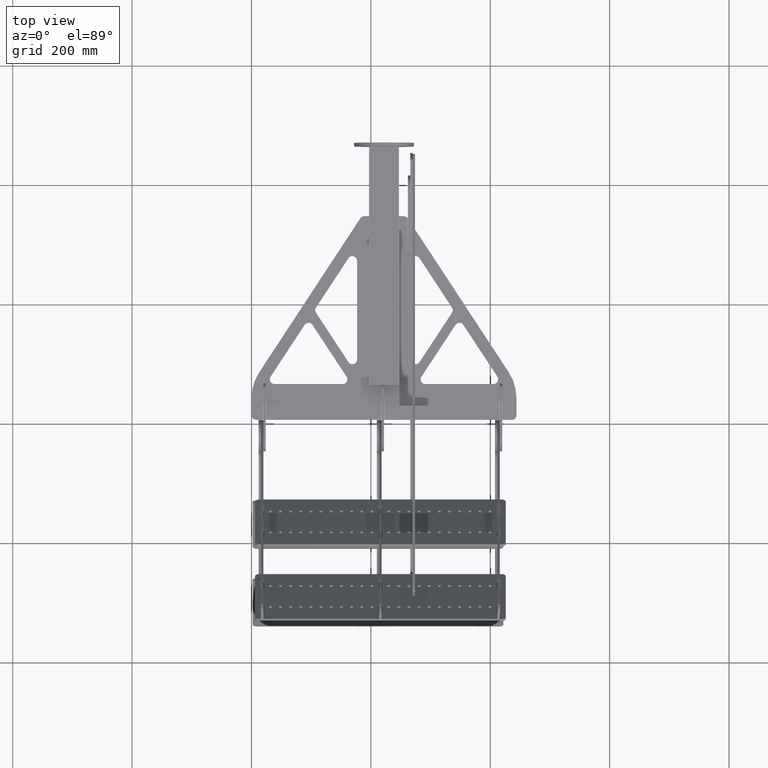
[diagram: clean part render]
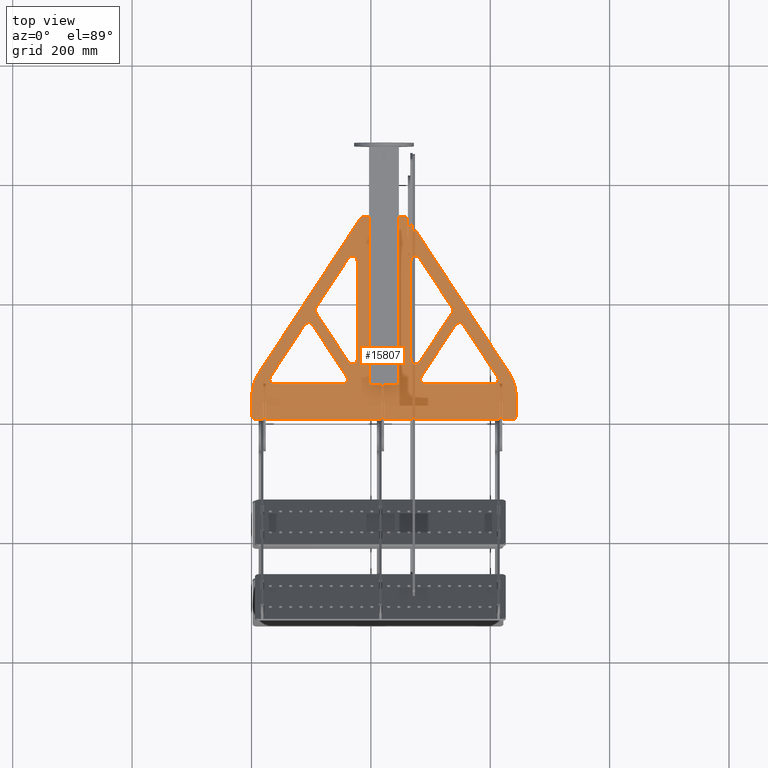
[diagram: same view with one face highlighted and labeled with its STEP entity id]
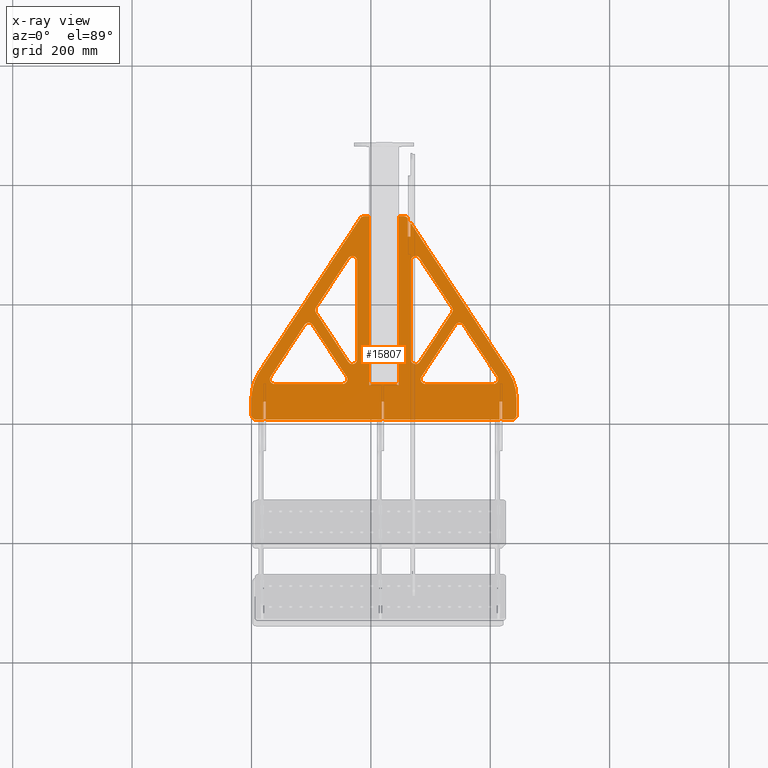
[diagram: x-ray of the same camera — body ghosted, the highlighted face saturated]
A machine part, top view. The second image highlights one B-rep face of the part: STEP entity #15807.
The next image is the same camera in x-ray: the body ghosted, the highlighted face saturated — about 1% of this face is hidden behind the body in this view.
In plain terms, the highlighted planar face has unit normal (0, 0, 1).
Its self-contained STEP definition (entity closure, byte-faithful):
#12 = VERTEX_POINT ( 'NONE', #4402 ) ;
#95 = VERTEX_POINT ( 'NONE', #12875 ) ;
#102 = CARTESIAN_POINT ( 'NONE',  ( 152.3390500830379000, -100.0359762211931500, 4.000000000000000000 ) ) ;
#109 = VECTOR ( 'NONE', #3108, 1000.000000000000000 ) ;
#123 = ORIENTED_EDGE ( 'NONE', *, *, #14482, .T. ) ;
#126 = EDGE_LOOP ( 'NONE', ( #3964, #14374, #3701, #15455, #3602, #15847, #7174, #12003, #4223, #330, #1074, #16534, #13043, #1642, #1350, #7548, #15241, #1438, #12494, #609, #7664, #6154, #11868, #8483, #5845, #13599, #7946, #16176, #8318, #1757, #10492, #1658, #12070, #13246, #7488, #8324, #1364, #123, #8420 ) ) ;
#128 = LINE ( 'NONE', #14519, #7131 ) ;
#152 = CARTESIAN_POINT ( 'NONE',  ( 24.19999999999999200, 4.170229283308482500E-014, 4.000000000000000000 ) ) ;
#157 = VERTEX_POINT ( 'NONE', #7732 ) ;
#158 = VERTEX_POINT ( 'NONE', #5159 ) ;
#187 = DIRECTION ( 'NONE',  ( -1.000000000000000000, 0.0000000000000000000, 0.0000000000000000000 ) ) ;
#190 = CARTESIAN_POINT ( 'NONE',  ( 0.0000000000000000000, 0.0000000000000000000, 4.000000000000000000 ) ) ;
#269 = DIRECTION ( 'NONE',  ( -1.000000000000000000, 0.0000000000000000000, 0.0000000000000000000 ) ) ;
#286 = DIRECTION ( 'NONE',  ( -1.000000000000000000, 0.0000000000000000000, 0.0000000000000000000 ) ) ;
#309 = CARTESIAN_POINT ( 'NONE',  ( 355.0091107729554700, 159.0826021288199000, 4.000000000000000000 ) ) ;
#330 = ORIENTED_EDGE ( 'NONE', *, *, #10608, .F. ) ;
#338 = CARTESIAN_POINT ( 'NONE',  ( 0.0000000000000000000, 57.99999999999999300, 4.000000000000000000 ) ) ;
#473 = LINE ( 'NONE', #190, #3573 ) ;
#491 = ORIENTED_EDGE ( 'NONE', *, *, #5228, .T. ) ;
#538 = EDGE_CURVE ( 'NONE', #8732, #9022, #3840, .T. ) ;
#609 = ORIENTED_EDGE ( 'NONE', *, *, #15421, .F. ) ;
#636 = CIRCLE ( 'NONE', #4499, 8.000000000000007100 ) ;
#679 = VERTEX_POINT ( 'NONE', #1316 ) ;
#761 = EDGE_CURVE ( 'NONE', #8474, #15510, #13004, .T. ) ;
#805 = VECTOR ( 'NONE', #8690, 1000.000000000000000 ) ;
#829 = DIRECTION ( 'NONE',  ( -0.0000000000000000000, -0.0000000000000000000, -1.000000000000000000 ) ) ;
#841 = EDGE_CURVE ( 'NONE', #6924, #7484, #2750, .T. ) ;
#868 = EDGE_CURVE ( 'NONE', #10482, #1345, #13790, .T. ) ;
#878 = CIRCLE ( 'NONE', #9183, 8.000000000000007100 ) ;
#993 = DIRECTION ( 'NONE',  ( -0.0000000000000000000, -0.0000000000000000000, -1.000000000000000000 ) ) ;
#1059 = VERTEX_POINT ( 'NONE', #1341 ) ;
#1074 = ORIENTED_EDGE ( 'NONE', *, *, #3317, .F. ) ;
#1229 = ORIENTED_EDGE ( 'NONE', *, *, #8572, .T. ) ;
#1241 = CIRCLE ( 'NONE', #10416, 7.999999999999952000 ) ;
#1316 = CARTESIAN_POINT ( 'NONE',  ( 247.2000000000000200, 341.2426514745468500, 4.000000000000000000 ) ) ;
#1341 = CARTESIAN_POINT ( 'NONE',  ( 217.7999999999999800, 0.0000000000000000000, 4.000000000000000000 ) ) ;
#1345 = VERTEX_POINT ( 'NONE', #4884 ) ;
#1350 = ORIENTED_EDGE ( 'NONE', *, *, #6716, .F. ) ;
#1364 = ORIENTED_EDGE ( 'NONE', *, *, #3706, .F. ) ;
#1438 = ORIENTED_EDGE ( 'NONE', *, *, #2964, .F. ) ;
#1462 = ORIENTED_EDGE ( 'NONE', *, *, #868, .T. ) ;
#1491 = CARTESIAN_POINT ( 'NONE',  ( 283.3946510641233700, 67.99999999962462000, 4.000000000000000000 ) ) ;
#1608 = DIRECTION ( 'NONE',  ( 0.0000000000000000000, 1.000000000000000000, -0.0000000000000000000 ) ) ;
#1632 = VECTOR ( 'NONE', #7807, 1000.000000000000000 ) ;
#1642 = ORIENTED_EDGE ( 'NONE', *, *, #3240, .F. ) ;
#1651 = LINE ( 'NONE', #15327, #8224 ) ;
#1658 = ORIENTED_EDGE ( 'NONE', *, *, #4448, .F. ) ;
#1698 = VECTOR ( 'NONE', #12490, 1000.000000000000000 ) ;
#1708 = EDGE_CURVE ( 'NONE', #14004, #7793, #12467, .T. ) ;
#1719 = CARTESIAN_POINT ( 'NONE',  ( 108.1322069572191500, 179.4494191489770000, 4.000000000000000000 ) ) ;
#1757 = ORIENTED_EDGE ( 'NONE', *, *, #3690, .T. ) ;
#1808 = EDGE_CURVE ( 'NONE', #158, #3349, #14312, .T. ) ;
#1845 = AXIS2_PLACEMENT_3D ( 'NONE', #1906, #11101, #3249 ) ;
#1863 = ORIENTED_EDGE ( 'NONE', *, *, #538, .F. ) ;
#1872 = DIRECTION ( 'NONE',  ( -0.0000000000000000000, -0.0000000000000000000, -1.000000000000000000 ) ) ;
#1906 = CARTESIAN_POINT ( 'NONE',  ( 38.75063936099929400, 67.99999999999994300, 4.000000000000000000 ) ) ;
#1938 = CARTESIAN_POINT ( 'NONE',  ( 0.0000000000000000000, 341.2426514745469000, 4.000000000000000000 ) ) ;
#1944 = VERTEX_POINT ( 'NONE', #2673 ) ;
#1945 = VERTEX_POINT ( 'NONE', #5693 ) ;
#1991 = VERTEX_POINT ( 'NONE', #16438 ) ;
#2001 = DIRECTION ( 'NONE',  ( -0.0000000000000000000, -0.0000000000000000000, -1.000000000000000000 ) ) ;
#2019 = CARTESIAN_POINT ( 'NONE',  ( 222.2000000000000500, 0.0000000000000000000, 4.000000000000000000 ) ) ;
#2028 = AXIS2_PLACEMENT_3D ( 'NONE', #9865, #2001, #11196 ) ;
#2146 = VERTEX_POINT ( 'NONE', #8897 ) ;
#2154 = EDGE_CURVE ( 'NONE', #4337, #15161, #4872, .T. ) ;
#2201 = CARTESIAN_POINT ( 'NONE',  ( 420.2000000000000500, 0.0000000000000000000, 4.000000000000000000 ) ) ;
#2352 = LINE ( 'NONE', #3888, #9345 ) ;
#2431 = DIRECTION ( 'NONE',  ( -0.0000000000000000000, -0.0000000000000000000, -1.000000000000000000 ) ) ;
#2444 = ORIENTED_EDGE ( 'NONE', *, *, #3695, .T. ) ;
#2464 = VECTOR ( 'NONE', #3224, 1000.000000000000000 ) ;
#2527 = CARTESIAN_POINT ( 'NONE',  ( 255.0000000000000000, 333.2426514745470200, 4.000000000000000000 ) ) ;
#2549 = CARTESIAN_POINT ( 'NONE',  ( 19.79999999999993700, 30.19999999999999600, 4.000000000000000000 ) ) ;
#2560 = EDGE_CURVE ( 'NONE', #16270, #13100, #11011, .T. ) ;
#2583 = EDGE_CURVE ( 'NONE', #15161, #12, #7501, .T. ) ;
#2608 = EDGE_CURVE ( 'NONE', #3921, #12172, #2352, .T. ) ;
#2639 = FACE_BOUND ( 'NONE', #17008, .T. ) ;
#2673 = CARTESIAN_POINT ( 'NONE',  ( 88.99088922712424200, 159.0826021286887900, 4.000000000000000000 ) ) ;
#2722 = CARTESIAN_POINT ( 'NONE',  ( 159.2924538582330700, 72.39119889855761900, 4.000000000000000000 ) ) ;
#2747 = EDGE_CURVE ( 'NONE', #4508, #14042, #10993, .T. ) ;
#2748 = CARTESIAN_POINT ( 'NONE',  ( 415.8000000000000700, 0.0000000000000000000, 4.000000000000000000 ) ) ;
#2750 = LINE ( 'NONE', #8154, #16243 ) ;
#2764 = DIRECTION ( 'NONE',  ( 0.5488998623196910100, 0.8358881152076659300, -0.0000000000000000000 ) ) ;
#2781 = VERTEX_POINT ( 'NONE', #9978 ) ;
#2847 = ORIENTED_EDGE ( 'NONE', *, *, #12460, .T. ) ;
#2919 = DIRECTION ( 'NONE',  ( 0.5488998623202679900, -0.8358881152072870100, -0.0000000000000000000 ) ) ;
#2964 = EDGE_CURVE ( 'NONE', #157, #12172, #13834, .T. ) ;
#3000 = LINE ( 'NONE', #9529, #6039 ) ;
#3031 = ORIENTED_EDGE ( 'NONE', *, *, #13560, .T. ) ;
#3047 = EDGE_CURVE ( 'NONE', #10996, #2781, #16483, .T. ) ;
#3053 = CARTESIAN_POINT ( 'NONE',  ( 13.12895078338714700, 79.99332606607185900, 4.000000000000000000 ) ) ;
#3059 = VECTOR ( 'NONE', #2919, 1000.000000000000100 ) ;
#3075 = ORIENTED_EDGE ( 'NONE', *, *, #17023, .T. ) ;
#3092 = CARTESIAN_POINT ( 'NONE',  ( 177.0000000000000000, 266.3492801609145300, 4.000000000000000000 ) ) ;
#3100 = CARTESIAN_POINT ( 'NONE',  ( 267.0000000000000000, 0.0000000000000000000, 4.000000000000000000 ) ) ;
#3108 = DIRECTION ( 'NONE',  ( 0.0000000000000000000, 1.000000000000000000, -0.0000000000000000000 ) ) ;
#3112 = DIRECTION ( 'NONE',  ( 1.000000000000000000, 0.0000000000000000000, -0.0000000000000000000 ) ) ;
#3157 = DIRECTION ( 'NONE',  ( 0.0000000000000000000, 1.000000000000000000, -0.0000000000000000000 ) ) ;
#3221 = CARTESIAN_POINT ( 'NONE',  ( -10.81136997697623800, 7.099466284881065000, 4.000000000000000000 ) ) ;
#3224 = DIRECTION ( 'NONE',  ( 1.000000000000000000, 0.0000000000000000000, -0.0000000000000000000 ) ) ;
#3232 = LINE ( 'NONE', #15073, #13307 ) ;
#3240 = EDGE_CURVE ( 'NONE', #10358, #5099, #13011, .T. ) ;
#3249 = DIRECTION ( 'NONE',  ( -1.000000000000000000, 0.0000000000000000000, 0.0000000000000000000 ) ) ;
#3275 = AXIS2_PLACEMENT_3D ( 'NONE', #4111, #13286, #5417 ) ;
#3300 = CARTESIAN_POINT ( 'NONE',  ( 157.8877197855294700, 103.6796026591645000, 4.000000000000000000 ) ) ;
#3317 = EDGE_CURVE ( 'NONE', #4685, #679, #11347, .T. ) ;
#3332 = DIRECTION ( 'NONE',  ( -0.0000000000000000000, -0.0000000000000000000, -1.000000000000000000 ) ) ;
#3342 = CARTESIAN_POINT ( 'NONE',  ( 70.44999999999926400, -70.44999999999977500, 4.000000000000000000 ) ) ;
#3343 = DIRECTION ( 'NONE',  ( -0.5488998623198605400, 0.8358881152075545700, 0.0000000000000000000 ) ) ;
#3349 = VERTEX_POINT ( 'NONE', #309 ) ;
#3426 = LINE ( 'NONE', #7821, #6508 ) ;
#3488 = CARTESIAN_POINT ( 'NONE',  ( 196.8000000000000100, 341.2426514745470700, 4.000000000000000000 ) ) ;
#3491 = CARTESIAN_POINT ( 'NONE',  ( 436.0000000005181800, 2.428612866367529900E-014, 4.000000000000000000 ) ) ;
#3538 = EDGE_CURVE ( 'NONE', #12410, #1945, #7879, .T. ) ;
#3573 = VECTOR ( 'NONE', #10725, 1000.000000000000000 ) ;
#3583 = VECTOR ( 'NONE', #5183, 1000.000000000000000 ) ;
#3602 = ORIENTED_EDGE ( 'NONE', *, *, #13671, .F. ) ;
#3666 = CARTESIAN_POINT ( 'NONE',  ( 8.000000000000000000, 8.000000000000000000, 4.000000000000000000 ) ) ;
#3681 = CARTESIAN_POINT ( 'NONE',  ( 8.000000000000028400, 0.0000000000000000000, 4.000000000000000000 ) ) ;
#3690 = EDGE_CURVE ( 'NONE', #6286, #1059, #13406, .T. ) ;
#3695 = EDGE_CURVE ( 'NONE', #95, #15588, #6408, .T. ) ;
#3701 = ORIENTED_EDGE ( 'NONE', *, *, #15751, .F. ) ;
#3706 = EDGE_CURVE ( 'NONE', #15477, #12039, #9492, .T. ) ;
#3772 = DIRECTION ( 'NONE',  ( -0.0000000000000000000, -0.0000000000000000000, -1.000000000000000000 ) ) ;
#3802 = VERTEX_POINT ( 'NONE', #13631 ) ;
#3840 = LINE ( 'NONE', #6360, #7324 ) ;
#3856 = DIRECTION ( 'NONE',  ( -1.000000000000000000, 0.0000000000000000000, 0.0000000000000000000 ) ) ;
#3888 = CARTESIAN_POINT ( 'NONE',  ( 199.0000000000000000, 0.0000000000000000000, 4.000000000000000000 ) ) ;
#3900 = VERTEX_POINT ( 'NONE', #16239 ) ;
#3921 = VERTEX_POINT ( 'NONE', #12573 ) ;
#3964 = ORIENTED_EDGE ( 'NONE', *, *, #841, .T. ) ;
#3990 = AXIS2_PLACEMENT_3D ( 'NONE', #2527, #11703, #3856 ) ;
#4062 = ORIENTED_EDGE ( 'NONE', *, *, #1808, .T. ) ;
#4068 = CIRCLE ( 'NONE', #8871, 7.999999999999996400 ) ;
#4111 = CARTESIAN_POINT ( 'NONE',  ( 95.67799414878555800, 154.6914032301312700, 4.000000000000000000 ) ) ;
#4196 = CARTESIAN_POINT ( 'NONE',  ( -27.52913228112945600, 18.07746353127501500, 4.000000000000000000 ) ) ;
#4223 = ORIENTED_EDGE ( 'NONE', *, *, #5694, .F. ) ;
#4229 = CARTESIAN_POINT ( 'NONE',  ( 0.0000000000000000000, 30.19999999999999900, 4.000000000000000000 ) ) ;
#4243 = CARTESIAN_POINT ( 'NONE',  ( 19.79999999999999400, 0.0000000000000000000, 4.000000000000000000 ) ) ;
#4303 = DIRECTION ( 'NONE',  ( 0.0000000000000000000, 1.000000000000000000, -0.0000000000000000000 ) ) ;
#4337 = VERTEX_POINT ( 'NONE', #14470 ) ;
#4402 = CARTESIAN_POINT ( 'NONE',  ( 284.7075461424287800, 72.39119889813142100, 4.000000000000000000 ) ) ;
#4442 = CARTESIAN_POINT ( 'NONE',  ( 275.0000000000000000, 266.3492801609986600, 4.000000000000000000 ) ) ;
#4448 = EDGE_CURVE ( 'NONE', #10494, #13464, #11029, .T. ) ;
#4470 = CARTESIAN_POINT ( 'NONE',  ( 268.0358881152010900, 327.9656526164592400, 4.000000000000000000 ) ) ;
#4499 = AXIS2_PLACEMENT_3D ( 'NONE', #9726, #1872, #11064 ) ;
#4508 = VERTEX_POINT ( 'NONE', #16110 ) ;
#4523 = DIRECTION ( 'NONE',  ( -0.5488998623196980100, -0.8358881152076613800, -0.0000000000000000000 ) ) ;
#4562 = ORIENTED_EDGE ( 'NONE', *, *, #761, .F. ) ;
#4629 = CIRCLE ( 'NONE', #15301, 7.999999999999979600 ) ;
#4682 = EDGE_CURVE ( 'NONE', #6855, #12205, #5885, .T. ) ;
#4685 = VERTEX_POINT ( 'NONE', #5906 ) ;
#4712 = AXIS2_PLACEMENT_3D ( 'NONE', #15886, #8058, #187 ) ;
#4715 = CARTESIAN_POINT ( 'NONE',  ( 261.8000000001443400, 1.119574123488052700E-010, 4.000000000000000000 ) ) ;
#4754 = CARTESIAN_POINT ( 'NONE',  ( 182.3128950783386400, 337.6338503731045100, 4.000000000000000000 ) ) ;
#4763 = LINE ( 'NONE', #9371, #8267 ) ;
#4773 = CARTESIAN_POINT ( 'NONE',  ( 0.0000000000000000000, 30.20000000000000300, 4.000000000000000000 ) ) ;
#4788 = CARTESIAN_POINT ( 'NONE',  ( 0.0000000000000000000, 0.0000000000000000000, 4.000000000000000000 ) ) ;
#4867 = CARTESIAN_POINT ( 'NONE',  ( 247.2000000000000200, 0.0000000000000000000, 4.000000000000000000 ) ) ;
#4872 = CIRCLE ( 'NONE', #6119, 8.000000000000007100 ) ;
#4884 = CARTESIAN_POINT ( 'NONE',  ( 267.0000000000000000, 266.3492801609986600, 4.000000000000000000 ) ) ;
#4930 = DIRECTION ( 'NONE',  ( -0.0000000000000000000, -0.0000000000000000000, -1.000000000000000000 ) ) ;
#4982 = DIRECTION ( 'NONE',  ( -1.000000000000000000, 0.0000000000000000000, 0.0000000000000000000 ) ) ;
#5004 = CARTESIAN_POINT ( 'NONE',  ( 281.6871049216582600, 270.7404790595608700, 4.000000000000000000 ) ) ;
#5020 = CARTESIAN_POINT ( 'NONE',  ( 0.0000000000000000000, 57.99999999999999300, 4.000000000000000000 ) ) ;
#5026 = DIRECTION ( 'NONE',  ( 1.000000000000000000, 0.0000000000000000000, -0.0000000000000000000 ) ) ;
#5054 = AXIS2_PLACEMENT_3D ( 'NONE', #10304, #2431, #11609 ) ;
#5084 = DIRECTION ( 'NONE',  ( -0.0000000000000000000, -0.0000000000000000000, -1.000000000000000000 ) ) ;
#5089 = VERTEX_POINT ( 'NONE', #4243 ) ;
#5099 = VERTEX_POINT ( 'NONE', #10839 ) ;
#5159 = CARTESIAN_POINT ( 'NONE',  ( 341.6349009296021700, 159.0826021287640200, 4.000000000000000000 ) ) ;
#5165 = CARTESIAN_POINT ( 'NONE',  ( 177.0000000000000300, 101.3319559341547900, 4.000000000000000000 ) ) ;
#5173 = CARTESIAN_POINT ( 'NONE',  ( 165.7132599292180500, -108.8183740183859100, 4.000000000000000000 ) ) ;
#5175 = AXIS2_PLACEMENT_3D ( 'NONE', #11623, #3772, #12938 ) ;
#5183 = DIRECTION ( 'NONE',  ( 1.000000000000000000, 0.0000000000000000000, -0.0000000000000000000 ) ) ;
#5228 = EDGE_CURVE ( 'NONE', #2146, #7290, #13828, .T. ) ;
#5302 = CARTESIAN_POINT ( 'NONE',  ( 196.8000000000000100, 0.0000000000000000000, 4.000000000000000000 ) ) ;
#5352 = EDGE_LOOP ( 'NONE', ( #4562, #8252, #1462, #7103, #3075, #3031 ) ) ;
#5417 = DIRECTION ( 'NONE',  ( -1.000000000000000000, 0.0000000000000000000, 0.0000000000000000000 ) ) ;
#5448 = DIRECTION ( 'NONE',  ( -0.5488998623196980100, -0.8358881152076613800, -0.0000000000000000000 ) ) ;
#5512 = CARTESIAN_POINT ( 'NONE',  ( 420.2000000000000500, 0.0000000000000000000, 4.000000000000000000 ) ) ;
#5520 = VECTOR ( 'NONE', #12685, 1000.000000000000000 ) ;
#5600 = DIRECTION ( 'NONE',  ( -0.0000000000000000000, -0.0000000000000000000, -1.000000000000000000 ) ) ;
#5622 = CARTESIAN_POINT ( 'NONE',  ( 222.1999999999999900, 30.19999999999999600, 4.000000000000000000 ) ) ;
#5693 = CARTESIAN_POINT ( 'NONE',  ( 102.3650990704468900, 159.0826021286888500, 4.000000000000000000 ) ) ;
#5694 = EDGE_CURVE ( 'NONE', #9053, #14042, #14016, .T. ) ;
#5711 = EDGE_CURVE ( 'NONE', #6415, #8688, #7078, .T. ) ;
#5724 = VERTEX_POINT ( 'NONE', #15576 ) ;
#5741 = DIRECTION ( 'NONE',  ( -1.000000000000000000, 0.0000000000000000000, 0.0000000000000000000 ) ) ;
#5845 = ORIENTED_EDGE ( 'NONE', *, *, #8675, .F. ) ;
#5869 = EDGE_CURVE ( 'NONE', #14891, #7484, #6875, .T. ) ;
#5885 = CIRCLE ( 'NONE', #2028, 7.999999999999979600 ) ;
#5890 = CARTESIAN_POINT ( 'NONE',  ( 281.6871049216614400, 96.94075703559735800, 4.000000000000000000 ) ) ;
#5906 = CARTESIAN_POINT ( 'NONE',  ( 247.2000000000000200, 57.99999999999999300, 4.000000000000000000 ) ) ;
#5956 = CARTESIAN_POINT ( 'NONE',  ( 106.8193118788804300, 183.8406180475346000, 4.000000000000000000 ) ) ;
#5959 = CARTESIAN_POINT ( 'NONE',  ( 0.0000000000000000000, 36.08133708049572900, 4.000000000000000000 ) ) ;
#5979 = VECTOR ( 'NONE', #1608, 1000.000000000000000 ) ;
#6039 = VECTOR ( 'NONE', #6910, 1000.000000000000000 ) ;
#6040 = CIRCLE ( 'NONE', #6201, 1.000000000000000900 ) ;
#6068 = AXIS2_PLACEMENT_3D ( 'NONE', #15974, #8156, #269 ) ;
#6085 = DIRECTION ( 'NONE',  ( 1.000000000000000000, 0.0000000000000000000, 0.0000000000000000000 ) ) ;
#6092 = FACE_BOUND ( 'NONE', #16591, .T. ) ;
#6119 = AXIS2_PLACEMENT_3D ( 'NONE', #12915, #5084, #14219 ) ;
#6146 = CARTESIAN_POINT ( 'NONE',  ( 0.0000000000000000000, 30.19999999999999900, 4.000000000000000000 ) ) ;
#6154 = ORIENTED_EDGE ( 'NONE', *, *, #10955, .T. ) ;
#6186 = VERTEX_POINT ( 'NONE', #3488 ) ;
#6189 = CARTESIAN_POINT ( 'NONE',  ( 189.0000000000000000, 341.2426514745470200, 4.000000000000000000 ) ) ;
#6201 = AXIS2_PLACEMENT_3D ( 'NONE', #12751, #4930, #14074 ) ;
#6234 = CARTESIAN_POINT ( 'NONE',  ( 444.0000000005181300, 8.000000000000000000, 4.000000000000000000 ) ) ;
#6238 = VECTOR ( 'NONE', #6322, 1000.000000000000000 ) ;
#6244 = VECTOR ( 'NONE', #10389, 1000.000000000000000 ) ;
#6249 = DIRECTION ( 'NONE',  ( -0.0000000000000000000, -0.0000000000000000000, -1.000000000000000000 ) ) ;
#6275 = CIRCLE ( 'NONE', #4712, 8.000000000000007100 ) ;
#6286 = VERTEX_POINT ( 'NONE', #10258 ) ;
#6322 = DIRECTION ( 'NONE',  ( 1.000000000000000000, 0.0000000000000000000, -0.0000000000000000000 ) ) ;
#6360 = CARTESIAN_POINT ( 'NONE',  ( 177.0000000000000300, 0.0000000000000000000, 4.000000000000000000 ) ) ;
#6396 = EDGE_CURVE ( 'NONE', #12039, #3900, #9272, .T. ) ;
#6398 = CARTESIAN_POINT ( 'NONE',  ( 291.3946510641233700, 67.99999999962462000, 4.000000000000000000 ) ) ;
#6408 = CIRCLE ( 'NONE', #6068, 8.000000000000007100 ) ;
#6415 = VERTEX_POINT ( 'NONE', #10044 ) ;
#6494 = CARTESIAN_POINT ( 'NONE',  ( 200.9000000000000300, 60.00000000000000000, 4.000000000000000000 ) ) ;
#6508 = VECTOR ( 'NONE', #15638, 1000.000000000000100 ) ;
#6716 = EDGE_CURVE ( 'NONE', #15010, #10358, #16223, .T. ) ;
#6757 = DIRECTION ( 'NONE',  ( -0.0000000000000000000, -0.0000000000000000000, -1.000000000000000000 ) ) ;
#6784 = CARTESIAN_POINT ( 'NONE',  ( 364.0000000005181800, 36.08133708008970300, 4.000000000000000000 ) ) ;
#6802 = AXIS2_PLACEMENT_3D ( 'NONE', #13466, #5600, #14761 ) ;
#6810 = EDGE_CURVE ( 'NONE', #8161, #5724, #12965, .T. ) ;
#6851 = VECTOR ( 'NONE', #12257, 1000.000000000000000 ) ;
#6855 = VERTEX_POINT ( 'NONE', #4754 ) ;
#6875 = CIRCLE ( 'NONE', #15372, 79.99999999999995700 ) ;
#6910 = DIRECTION ( 'NONE',  ( -9.190587952195007500E-016, 1.000000000000000000, -0.0000000000000000000 ) ) ;
#6924 = VERTEX_POINT ( 'NONE', #6234 ) ;
#6940 = AXIS2_PLACEMENT_3D ( 'NONE', #6398, #15547, #7735 ) ;
#6948 = LINE ( 'NONE', #12236, #16972 ) ;
#7036 = VECTOR ( 'NONE', #13874, 1000.000000000000000 ) ;
#7078 = LINE ( 'NONE', #10409, #3583 ) ;
#7103 = ORIENTED_EDGE ( 'NONE', *, *, #8023, .T. ) ;
#7130 = CARTESIAN_POINT ( 'NONE',  ( 245.0000000000000000, 0.0000000000000000000, 4.000000000000000000 ) ) ;
#7131 = VECTOR ( 'NONE', #15758, 1000.000000000000000 ) ;
#7174 = ORIENTED_EDGE ( 'NONE', *, *, #14730, .T. ) ;
#7192 = AXIS2_PLACEMENT_3D ( 'NONE', #4788, #13938, #6085 ) ;
#7199 = LINE ( 'NONE', #7130, #7597 ) ;
#7248 = ORIENTED_EDGE ( 'NONE', *, *, #9947, .T. ) ;
#7251 = DIRECTION ( 'NONE',  ( 0.5488998623202521200, -0.8358881152072974400, -0.0000000000000000000 ) ) ;
#7281 = VECTOR ( 'NONE', #13768, 1000.000000000000000 ) ;
#7290 = VERTEX_POINT ( 'NONE', #1719 ) ;
#7295 = CARTESIAN_POINT ( 'NONE',  ( 266.1999999999938500, 327.4167527541389400, 4.000000000000000000 ) ) ;
#7303 = ORIENTED_EDGE ( 'NONE', *, *, #8435, .F. ) ;
#7313 = CARTESIAN_POINT ( 'NONE',  ( 144.5135099422068900, 94.89720486204923600, 4.000000000000000000 ) ) ;
#7324 = VECTOR ( 'NONE', #14199, 1000.000000000000000 ) ;
#7369 = VERTEX_POINT ( 'NONE', #4470 ) ;
#7376 = ORIENTED_EDGE ( 'NONE', *, *, #8720, .F. ) ;
#7382 = CARTESIAN_POINT ( 'NONE',  ( 0.0000000000000000000, 341.2426514745470700, 4.000000000000000000 ) ) ;
#7481 = VECTOR ( 'NONE', #3343, 1000.000000000000000 ) ;
#7484 = VERTEX_POINT ( 'NONE', #12828 ) ;
#7488 = ORIENTED_EDGE ( 'NONE', *, *, #8798, .T. ) ;
#7501 = CIRCLE ( 'NONE', #6940, 8.000000000000007100 ) ;
#7548 = ORIENTED_EDGE ( 'NONE', *, *, #14711, .F. ) ;
#7559 = CARTESIAN_POINT ( 'NONE',  ( 335.8677930428488600, 179.4494191490822200, 4.000000000000000000 ) ) ;
#7597 = VECTOR ( 'NONE', #3157, 1000.000000000000000 ) ;
#7664 = ORIENTED_EDGE ( 'NONE', *, *, #4682, .F. ) ;
#7732 = CARTESIAN_POINT ( 'NONE',  ( 196.8000000000000100, 57.99999999999999300, 4.000000000000000000 ) ) ;
#7735 = DIRECTION ( 'NONE',  ( -1.000000000000000000, 0.0000000000000000000, 0.0000000000000000000 ) ) ;
#7793 = VERTEX_POINT ( 'NONE', #2549 ) ;
#7807 = DIRECTION ( 'NONE',  ( 0.5488998623133516400, 0.8358881152118288200, -0.0000000000000000000 ) ) ;
#7821 = CARTESIAN_POINT ( 'NONE',  ( -10.81136997697623800, 7.099466284881065000, 4.000000000000000000 ) ) ;
#7879 = LINE ( 'NONE', #7313, #14815 ) ;
#7925 = EDGE_CURVE ( 'NONE', #12122, #10494, #4763, .T. ) ;
#7941 = DIRECTION ( 'NONE',  ( 0.0000000000000000000, 1.000000000000000000, -0.0000000000000000000 ) ) ;
#7946 = ORIENTED_EDGE ( 'NONE', *, *, #11599, .T. ) ;
#8023 = EDGE_CURVE ( 'NONE', #1345, #14946, #16839, .T. ) ;
#8058 = DIRECTION ( 'NONE',  ( -0.0000000000000000000, -0.0000000000000000000, -1.000000000000000000 ) ) ;
#8104 = DIRECTION ( 'NONE',  ( -1.000000000000000000, 0.0000000000000000000, 0.0000000000000000000 ) ) ;
#8117 = VECTOR ( 'NONE', #11915, 1000.000000000000000 ) ;
#8154 = CARTESIAN_POINT ( 'NONE',  ( 444.0000000005181300, 0.0000000000000000000, 4.000000000000000000 ) ) ;
#8156 = DIRECTION ( 'NONE',  ( -0.0000000000000000000, -0.0000000000000000000, -1.000000000000000000 ) ) ;
#8161 = VERTEX_POINT ( 'NONE', #5956 ) ;
#8169 = DIRECTION ( 'NONE',  ( -0.0000000000000000000, -0.0000000000000000000, -1.000000000000000000 ) ) ;
#8224 = VECTOR ( 'NONE', #16640, 999.9999999999998900 ) ;
#8236 = EDGE_CURVE ( 'NONE', #6924, #8681, #1241, .T. ) ;
#8252 = ORIENTED_EDGE ( 'NONE', *, *, #8901, .T. ) ;
#8267 = VECTOR ( 'NONE', #14581, 1000.000000000000000 ) ;
#8318 = ORIENTED_EDGE ( 'NONE', *, *, #8829, .F. ) ;
#8324 = ORIENTED_EDGE ( 'NONE', *, *, #6396, .F. ) ;
#8406 = VECTOR ( 'NONE', #5026, 1000.000000000000000 ) ;
#8419 = EDGE_CURVE ( 'NONE', #14836, #5099, #7199, .T. ) ;
#8420 = ORIENTED_EDGE ( 'NONE', *, *, #8236, .F. ) ;
#8435 = EDGE_CURVE ( 'NONE', #1944, #9884, #10272, .T. ) ;
#8474 = VERTEX_POINT ( 'NONE', #5890 ) ;
#8483 = ORIENTED_EDGE ( 'NONE', *, *, #16802, .F. ) ;
#8572 = EDGE_CURVE ( 'NONE', #1991, #9022, #4629, .T. ) ;
#8635 = EDGE_CURVE ( 'NONE', #14342, #7369, #6040, .T. ) ;
#8675 = EDGE_CURVE ( 'NONE', #14947, #16064, #12601, .T. ) ;
#8681 = VERTEX_POINT ( 'NONE', #3491 ) ;
#8687 = ORIENTED_EDGE ( 'NONE', *, *, #12941, .T. ) ;
#8688 = VERTEX_POINT ( 'NONE', #12882 ) ;
#8690 = DIRECTION ( 'NONE',  ( 1.000000000000000000, 0.0000000000000000000, -0.0000000000000000000 ) ) ;
#8693 = CARTESIAN_POINT ( 'NONE',  ( 169.0000000000000000, 266.3492801609147000, 4.000000000000000000 ) ) ;
#8720 = EDGE_CURVE ( 'NONE', #4337, #15588, #13253, .T. ) ;
#8732 = VERTEX_POINT ( 'NONE', #5165 ) ;
#8774 = CARTESIAN_POINT ( 'NONE',  ( 245.0000000000000000, 57.99999999999999300, 4.000000000000000000 ) ) ;
#8788 = CARTESIAN_POINT ( 'NONE',  ( 198.9999999999999700, 57.99999999999999300, 4.000000000000000000 ) ) ;
#8798 = EDGE_CURVE ( 'NONE', #3802, #3900, #9928, .T. ) ;
#8829 = EDGE_CURVE ( 'NONE', #6286, #14004, #13018, .T. ) ;
#8850 = AXIS2_PLACEMENT_3D ( 'NONE', #3666, #12824, #4982 ) ;
#8851 = CARTESIAN_POINT ( 'NONE',  ( 38.75063936099929400, 67.99999999999994300, 4.000000000000000000 ) ) ;
#8871 = AXIS2_PLACEMENT_3D ( 'NONE', #8851, #993, #10184 ) ;
#8897 = CARTESIAN_POINT ( 'NONE',  ( 162.3128950783386400, 96.94075703559718700, 4.000000000000000000 ) ) ;
#8901 = EDGE_CURVE ( 'NONE', #8474, #10482, #16667, .T. ) ;
#8948 = CARTESIAN_POINT ( 'NONE',  ( 255.0000000000000000, 341.2426514745469000, 4.000000000000000000 ) ) ;
#8979 = DIRECTION ( 'NONE',  ( -0.0000000000000000000, -1.000000000000000000, 0.0000000000000000000 ) ) ;
#8982 = CARTESIAN_POINT ( 'NONE',  ( 5.704467314737851600E-013, 59.99999999962739800, 4.000000000000000000 ) ) ;
#9022 = VERTEX_POINT ( 'NONE', #3092 ) ;
#9033 = CARTESIAN_POINT ( 'NONE',  ( 405.2493606394958800, 59.99999999962354700, 4.000000000000000000 ) ) ;
#9053 = VERTEX_POINT ( 'NONE', #8948 ) ;
#9159 = VECTOR ( 'NONE', #4303, 1000.000000000000000 ) ;
#9183 = AXIS2_PLACEMENT_3D ( 'NONE', #15990, #8169, #286 ) ;
#9205 = EDGE_CURVE ( 'NONE', #157, #6186, #9316, .T. ) ;
#9247 = CARTESIAN_POINT ( 'NONE',  ( 0.0000000000000000000, 8.000000000000000000, 4.000000000000000000 ) ) ;
#9249 = CARTESIAN_POINT ( 'NONE',  ( 261.6871049216592300, 337.6338503731073500, 4.000000000000000000 ) ) ;
#9270 = DIRECTION ( 'NONE',  ( -1.723235241036563700E-015, 1.000000000000000000, -0.0000000000000000000 ) ) ;
#9272 = LINE ( 'NONE', #4773, #13965 ) ;
#9276 = VECTOR ( 'NONE', #3112, 1000.000000000000000 ) ;
#9316 = LINE ( 'NONE', #5302, #15859 ) ;
#9344 = ORIENTED_EDGE ( 'NONE', *, *, #11701, .T. ) ;
#9345 = VECTOR ( 'NONE', #8979, 1000.000000000000000 ) ;
#9371 = CARTESIAN_POINT ( 'NONE',  ( 222.2000000000000200, 2.042148642977730800E-013, 4.000000000000000000 ) ) ;
#9376 = ORIENTED_EDGE ( 'NONE', *, *, #13782, .T. ) ;
#9435 = CARTESIAN_POINT ( 'NONE',  ( 335.8677930428457300, 188.2318169462018900, 4.000000000000000000 ) ) ;
#9451 = LINE ( 'NONE', #1938, #2464 ) ;
#9492 = LINE ( 'NONE', #5512, #5979 ) ;
#9497 = CARTESIAN_POINT ( 'NONE',  ( 152.6053489365717400, 59.99999999999998600, 4.000000000000000000 ) ) ;
#9512 = VECTOR ( 'NONE', #2764, 1000.000000000000100 ) ;
#9517 = DIRECTION ( 'NONE',  ( 1.000000000000000000, 0.0000000000000000000, -0.0000000000000000000 ) ) ;
#9525 = VECTOR ( 'NONE', #16467, 1000.000000000000000 ) ;
#9529 = CARTESIAN_POINT ( 'NONE',  ( 217.7999999999999800, 2.001710055988072600E-013, 4.000000000000000000 ) ) ;
#9532 = VECTOR ( 'NONE', #9270, 1000.000000000000000 ) ;
#9546 = VECTOR ( 'NONE', #9583, 1000.000000000000000 ) ;
#9572 = CARTESIAN_POINT ( 'NONE',  ( 32.06353443933804200, 72.39119889855760400, 4.000000000000000000 ) ) ;
#9583 = DIRECTION ( 'NONE',  ( -1.000000000000000000, -3.656709817155941900E-016, -0.0000000000000000000 ) ) ;
#9606 = FACE_BOUND ( 'NONE', #12935, .T. ) ;
#9607 = CARTESIAN_POINT ( 'NONE',  ( 420.2000000000000500, 30.20000000000000300, 4.000000000000000000 ) ) ;
#9686 = CARTESIAN_POINT ( 'NONE',  ( 0.0000000000000000000, 0.0000000000000000000, 4.000000000000000000 ) ) ;
#9726 = CARTESIAN_POINT ( 'NONE',  ( 114.8193118788804300, 183.8406180475346000, 4.000000000000000000 ) ) ;
#9741 = ORIENTED_EDGE ( 'NONE', *, *, #12526, .T. ) ;
#9865 = CARTESIAN_POINT ( 'NONE',  ( 189.0000000000000000, 333.2426514745470700, 4.000000000000000000 ) ) ;
#9884 = VERTEX_POINT ( 'NONE', #9572 ) ;
#9900 = ORIENTED_EDGE ( 'NONE', *, *, #16544, .F. ) ;
#9928 = LINE ( 'NONE', #2748, #8117 ) ;
#9947 = EDGE_CURVE ( 'NONE', #7290, #8161, #636, .T. ) ;
#9978 = CARTESIAN_POINT ( 'NONE',  ( 38.75063936099935800, 59.99999999999995700, 4.000000000000000000 ) ) ;
#10020 = DIRECTION ( 'NONE',  ( -1.000000000000000000, 0.0000000000000000000, 0.0000000000000000000 ) ) ;
#10044 = CARTESIAN_POINT ( 'NONE',  ( 261.8000000000130900, 306.9573604060913100, 4.000000000000000000 ) ) ;
#10149 = LINE ( 'NONE', #5020, #6238 ) ;
#10184 = DIRECTION ( 'NONE',  ( -1.000000000000000000, 0.0000000000000000000, 0.0000000000000000000 ) ) ;
#10246 = LINE ( 'NONE', #4196, #16355 ) ;
#10258 = CARTESIAN_POINT ( 'NONE',  ( 24.19999999999998900, 0.0000000000000000000, 4.000000000000000000 ) ) ;
#10272 = LINE ( 'NONE', #3221, #13738 ) ;
#10304 = CARTESIAN_POINT ( 'NONE',  ( 348.3220058512972100, 154.6914032302577800, 4.000000000000000000 ) ) ;
#10358 = VERTEX_POINT ( 'NONE', #13303 ) ;
#10386 = VECTOR ( 'NONE', #9517, 1000.000000000000000 ) ;
#10389 = DIRECTION ( 'NONE',  ( 1.000000000000000000, -9.507445524622128100E-015, -0.0000000000000000000 ) ) ;
#10402 = VERTEX_POINT ( 'NONE', #9435 ) ;
#10409 = CARTESIAN_POINT ( 'NONE',  ( 0.0000000000000000000, 306.9573604060913100, 4.000000000000000000 ) ) ;
#10416 = AXIS2_PLACEMENT_3D ( 'NONE', #14102, #6249, #15393 ) ;
#10446 = CARTESIAN_POINT ( 'NONE',  ( 217.7999999999999500, 30.19999999999999600, 4.000000000000000000 ) ) ;
#10482 = VERTEX_POINT ( 'NONE', #13493 ) ;
#10492 = ORIENTED_EDGE ( 'NONE', *, *, #12548, .T. ) ;
#10494 = VERTEX_POINT ( 'NONE', #5622 ) ;
#10608 = EDGE_CURVE ( 'NONE', #679, #9053, #9451, .T. ) ;
#10618 = LINE ( 'NONE', #9686, #109 ) ;
#10725 = DIRECTION ( 'NONE',  ( 1.000000000000000000, 0.0000000000000000000, -0.0000000000000000000 ) ) ;
#10754 = CARTESIAN_POINT ( 'NONE',  ( 0.0000000000000000000, 0.0000000000000000000, 4.000000000000000000 ) ) ;
#10839 = CARTESIAN_POINT ( 'NONE',  ( 245.0000000000000000, 58.10000000000000900, 4.000000000000000000 ) ) ;
#10889 = ORIENTED_EDGE ( 'NONE', *, *, #3538, .F. ) ;
#10955 = EDGE_CURVE ( 'NONE', #6855, #13100, #10246, .T. ) ;
#10993 = LINE ( 'NONE', #15062, #7481 ) ;
#10996 = VERTEX_POINT ( 'NONE', #9497 ) ;
#11011 = CIRCLE ( 'NONE', #5175, 80.00000000000001400 ) ;
#11029 = LINE ( 'NONE', #4229, #14065 ) ;
#11064 = DIRECTION ( 'NONE',  ( -1.000000000000000000, 0.0000000000000000000, 0.0000000000000000000 ) ) ;
#11101 = DIRECTION ( 'NONE',  ( -0.0000000000000000000, -0.0000000000000000000, -1.000000000000000000 ) ) ;
#11182 = CARTESIAN_POINT ( 'NONE',  ( 114.8193118788804300, 183.8406180475346000, 4.000000000000000000 ) ) ;
#11196 = DIRECTION ( 'NONE',  ( -1.000000000000000000, 0.0000000000000000000, 0.0000000000000000000 ) ) ;
#11277 = LINE ( 'NONE', #7382, #805 ) ;
#11347 = LINE ( 'NONE', #4867, #14432 ) ;
#11531 = CARTESIAN_POINT ( 'NONE',  ( 30.75063936099930100, 67.99999999999994300, 4.000000000000000000 ) ) ;
#11593 = ORIENTED_EDGE ( 'NONE', *, *, #6810, .T. ) ;
#11599 = EDGE_CURVE ( 'NONE', #5089, #7793, #6948, .T. ) ;
#11609 = DIRECTION ( 'NONE',  ( -1.000000000000000000, 0.0000000000000000000, 0.0000000000000000000 ) ) ;
#11623 = CARTESIAN_POINT ( 'NONE',  ( 80.00000000000001400, 36.08133708049589200, 4.000000000000000000 ) ) ;
#11701 = EDGE_CURVE ( 'NONE', #3349, #95, #3232, .T. ) ;
#11703 = DIRECTION ( 'NONE',  ( -0.0000000000000000000, -0.0000000000000000000, -1.000000000000000000 ) ) ;
#11749 = LINE ( 'NONE', #3342, #1698 ) ;
#11868 = ORIENTED_EDGE ( 'NONE', *, *, #2560, .F. ) ;
#11915 = DIRECTION ( 'NONE',  ( 0.0000000000000000000, 1.000000000000000000, -0.0000000000000000000 ) ) ;
#11918 = ORIENTED_EDGE ( 'NONE', *, *, #3047, .T. ) ;
#12003 = ORIENTED_EDGE ( 'NONE', *, *, #2747, .T. ) ;
#12039 = VERTEX_POINT ( 'NONE', #9607 ) ;
#12050 = DIRECTION ( 'NONE',  ( 1.000000000000000000, 0.0000000000000000000, -0.0000000000000000000 ) ) ;
#12070 = ORIENTED_EDGE ( 'NONE', *, *, #7925, .F. ) ;
#12077 = DIRECTION ( 'NONE',  ( -1.000000000000000000, -0.0000000000000000000, -0.0000000000000000000 ) ) ;
#12097 = LINE ( 'NONE', #5173, #1632 ) ;
#12122 = VERTEX_POINT ( 'NONE', #2019 ) ;
#12172 = VERTEX_POINT ( 'NONE', #8788 ) ;
#12205 = VERTEX_POINT ( 'NONE', #6189 ) ;
#12236 = CARTESIAN_POINT ( 'NONE',  ( 19.79999999999999400, 3.866939880886048100E-014, 4.000000000000000000 ) ) ;
#12246 = EDGE_CURVE ( 'NONE', #14836, #4685, #10149, .T. ) ;
#12257 = DIRECTION ( 'NONE',  ( 0.0000000000000000000, 1.000000000000000000, -0.0000000000000000000 ) ) ;
#12410 = VERTEX_POINT ( 'NONE', #2722 ) ;
#12460 = EDGE_CURVE ( 'NONE', #1944, #1945, #16062, .T. ) ;
#12467 = LINE ( 'NONE', #6146, #5520 ) ;
#12475 = CARTESIAN_POINT ( 'NONE',  ( 151.5499999999991000, 151.5500000000002100, 4.000000000000000000 ) ) ;
#12484 = DIRECTION ( 'NONE',  ( -1.000000000000000000, 0.0000000000000000000, 0.0000000000000000000 ) ) ;
#12490 = DIRECTION ( 'NONE',  ( 0.7071067811865501300, 0.7071067811865449100, -0.0000000000000000000 ) ) ;
#12494 = ORIENTED_EDGE ( 'NONE', *, *, #9205, .T. ) ;
#12526 = EDGE_CURVE ( 'NONE', #12410, #10996, #878, .T. ) ;
#12548 = EDGE_CURVE ( 'NONE', #1059, #13464, #3000, .T. ) ;
#12573 = CARTESIAN_POINT ( 'NONE',  ( 199.0000000000000000, 58.10000000000000900, 4.000000000000000000 ) ) ;
#12601 = CIRCLE ( 'NONE', #8850, 8.000000000000000000 ) ;
#12685 = DIRECTION ( 'NONE',  ( -1.000000000000000000, -0.0000000000000000000, -0.0000000000000000000 ) ) ;
#12751 = CARTESIAN_POINT ( 'NONE',  ( 267.1999999999938500, 327.4167527541389400, 4.000000000000000000 ) ) ;
#12752 = AXIS2_PLACEMENT_3D ( 'NONE', #11182, #3332, #12484 ) ;
#12824 = DIRECTION ( 'NONE',  ( -0.0000000000000000000, -0.0000000000000000000, -1.000000000000000000 ) ) ;
#12828 = CARTESIAN_POINT ( 'NONE',  ( 444.0000000005181300, 36.08133708008970300, 4.000000000000000000 ) ) ;
#12840 = CIRCLE ( 'NONE', #1845, 7.999999999999996400 ) ;
#12846 = CARTESIAN_POINT ( 'NONE',  ( 430.8710492171011900, 79.99332606571111600, 4.000000000000000000 ) ) ;
#12859 = CARTESIAN_POINT ( 'NONE',  ( 0.0000000000000000000, 0.0000000000000000000, 4.000000000000000000 ) ) ;
#12875 = CARTESIAN_POINT ( 'NONE',  ( 411.9364655611542500, 72.39119889818565000, 4.000000000000000000 ) ) ;
#12882 = CARTESIAN_POINT ( 'NONE',  ( 266.1999999999938500, 306.9573604060913100, 4.000000000000000000 ) ) ;
#12915 = CARTESIAN_POINT ( 'NONE',  ( 291.3946510641233700, 67.99999999962462000, 4.000000000000000000 ) ) ;
#12935 = EDGE_LOOP ( 'NONE', ( #7248, #11593, #9900, #1229, #1863, #16381, #491 ) ) ;
#12938 = DIRECTION ( 'NONE',  ( -1.000000000000000000, 0.0000000000000000000, 0.0000000000000000000 ) ) ;
#12941 = EDGE_CURVE ( 'NONE', #12, #158, #12097, .T. ) ;
#12965 = CIRCLE ( 'NONE', #12752, 8.000000000000007100 ) ;
#13004 = LINE ( 'NONE', #102, #9512 ) ;
#13011 = LINE ( 'NONE', #12475, #9525 ) ;
#13018 = LINE ( 'NONE', #152, #9532 ) ;
#13020 = ORIENTED_EDGE ( 'NONE', *, *, #2583, .T. ) ;
#13043 = ORIENTED_EDGE ( 'NONE', *, *, #8419, .T. ) ;
#13098 = FACE_OUTER_BOUND ( 'NONE', #126, .T. ) ;
#13100 = VERTEX_POINT ( 'NONE', #3053 ) ;
#13246 = ORIENTED_EDGE ( 'NONE', *, *, #15912, .T. ) ;
#13253 = LINE ( 'NONE', #8982, #6244 ) ;
#13286 = DIRECTION ( 'NONE',  ( -0.0000000000000000000, -0.0000000000000000000, -1.000000000000000000 ) ) ;
#13303 = CARTESIAN_POINT ( 'NONE',  ( 243.0999999999999900, 60.00000000000000000, 4.000000000000000000 ) ) ;
#13307 = VECTOR ( 'NONE', #7251, 1000.000000000000000 ) ;
#13312 = CARTESIAN_POINT ( 'NONE',  ( 337.7559021496221600, 221.7930424119150000, 4.000000000000000000 ) ) ;
#13406 = LINE ( 'NONE', #10754, #16429 ) ;
#13464 = VERTEX_POINT ( 'NONE', #10446 ) ;
#13466 = CARTESIAN_POINT ( 'NONE',  ( 275.0000000000000000, 101.3319559341547800, 4.000000000000000000 ) ) ;
#13487 = CARTESIAN_POINT ( 'NONE',  ( -2.194025890293562300E-014, 59.99999999999993600, 4.000000000000000000 ) ) ;
#13493 = CARTESIAN_POINT ( 'NONE',  ( 267.0000000000000000, 101.3319559341549500, 4.000000000000000000 ) ) ;
#13513 = LINE ( 'NONE', #13312, #3059 ) ;
#13560 = EDGE_CURVE ( 'NONE', #10402, #15510, #15085, .T. ) ;
#13599 = ORIENTED_EDGE ( 'NONE', *, *, #16604, .T. ) ;
#13604 = DIRECTION ( 'NONE',  ( -0.0000000000000000000, -0.0000000000000000000, -1.000000000000000000 ) ) ;
#13631 = CARTESIAN_POINT ( 'NONE',  ( 415.8000000000001300, 0.0000000000000000000, 4.000000000000000000 ) ) ;
#13671 = EDGE_CURVE ( 'NONE', #8688, #14342, #16118, .T. ) ;
#13738 = VECTOR ( 'NONE', #4523, 1000.000000000000100 ) ;
#13768 = DIRECTION ( 'NONE',  ( -0.5488998623196983400, 0.8358881152076611500, -0.0000000000000000000 ) ) ;
#13782 = EDGE_CURVE ( 'NONE', #2781, #16469, #12840, .T. ) ;
#13790 = LINE ( 'NONE', #3100, #6851 ) ;
#13828 = LINE ( 'NONE', #3300, #7281 ) ;
#13834 = LINE ( 'NONE', #338, #10386 ) ;
#13874 = DIRECTION ( 'NONE',  ( -4.276448141663236700E-013, 1.000000000000000000, -0.0000000000000000000 ) ) ;
#13885 = EDGE_CURVE ( 'NONE', #16469, #9884, #4068, .T. ) ;
#13938 = DIRECTION ( 'NONE',  ( -0.0000000000000000000, 0.0000000000000000000, 1.000000000000000000 ) ) ;
#13965 = VECTOR ( 'NONE', #16557, 1000.000000000000000 ) ;
#13971 = LINE ( 'NONE', #4715, #7036 ) ;
#14004 = VERTEX_POINT ( 'NONE', #15709 ) ;
#14016 = CIRCLE ( 'NONE', #3990, 7.999999999999840100 ) ;
#14042 = VERTEX_POINT ( 'NONE', #9249 ) ;
#14065 = VECTOR ( 'NONE', #12077, 1000.000000000000000 ) ;
#14074 = DIRECTION ( 'NONE',  ( -1.000000000000000000, 0.0000000000000000000, 0.0000000000000000000 ) ) ;
#14090 = EDGE_CURVE ( 'NONE', #8732, #2146, #6275, .T. ) ;
#14102 = CARTESIAN_POINT ( 'NONE',  ( 436.0000000005181800, 8.000000000000000000, 4.000000000000000000 ) ) ;
#14199 = DIRECTION ( 'NONE',  ( 0.0000000000000000000, 1.000000000000000000, -0.0000000000000000000 ) ) ;
#14219 = DIRECTION ( 'NONE',  ( -1.000000000000000000, 0.0000000000000000000, 0.0000000000000000000 ) ) ;
#14231 = ORIENTED_EDGE ( 'NONE', *, *, #2154, .T. ) ;
#14312 = CIRCLE ( 'NONE', #5054, 8.000000000000007100 ) ;
#14342 = VERTEX_POINT ( 'NONE', #7295 ) ;
#14374 = ORIENTED_EDGE ( 'NONE', *, *, #5869, .F. ) ;
#14432 = VECTOR ( 'NONE', #15262, 1000.000000000000000 ) ;
#14470 = CARTESIAN_POINT ( 'NONE',  ( 291.3946510641233100, 59.99999999962462700, 4.000000000000000000 ) ) ;
#14482 = EDGE_CURVE ( 'NONE', #15477, #8681, #473, .T. ) ;
#14519 = CARTESIAN_POINT ( 'NONE',  ( 0.0000000000000000000, 0.0000000000000000000, 4.000000000000000000 ) ) ;
#14581 = DIRECTION ( 'NONE',  ( -9.190587952195007500E-016, 1.000000000000000000, -0.0000000000000000000 ) ) ;
#14592 = CARTESIAN_POINT ( 'NONE',  ( 329.1806881211875900, 183.8406180476396800, 4.000000000000000000 ) ) ;
#14711 = EDGE_CURVE ( 'NONE', #3921, #15010, #11749, .T. ) ;
#14730 = EDGE_CURVE ( 'NONE', #6415, #4508, #13971, .T. ) ;
#14761 = DIRECTION ( 'NONE',  ( -1.000000000000000000, 0.0000000000000000000, 0.0000000000000000000 ) ) ;
#14815 = VECTOR ( 'NONE', #16439, 1000.000000000000100 ) ;
#14836 = VERTEX_POINT ( 'NONE', #8774 ) ;
#14891 = VERTEX_POINT ( 'NONE', #12846 ) ;
#14946 = VERTEX_POINT ( 'NONE', #5004 ) ;
#14947 = VERTEX_POINT ( 'NONE', #3681 ) ;
#15010 = VERTEX_POINT ( 'NONE', #6494 ) ;
#15062 = CARTESIAN_POINT ( 'NONE',  ( 261.7999999999999000, 337.4619289340099000, 4.000000000000000000 ) ) ;
#15073 = CARTESIAN_POINT ( 'NONE',  ( 321.0381398454830400, 210.8150451655052700, 4.000000000000000000 ) ) ;
#15085 = CIRCLE ( 'NONE', #16538, 8.000000000000007100 ) ;
#15161 = VERTEX_POINT ( 'NONE', #1491 ) ;
#15241 = ORIENTED_EDGE ( 'NONE', *, *, #2608, .T. ) ;
#15262 = DIRECTION ( 'NONE',  ( 0.0000000000000000000, 1.000000000000000000, -0.0000000000000000000 ) ) ;
#15301 = AXIS2_PLACEMENT_3D ( 'NONE', #8693, #829, #10020 ) ;
#15327 = CARTESIAN_POINT ( 'NONE',  ( 321.0381398454754300, 210.8150451655135700, 4.000000000000000000 ) ) ;
#15335 = LINE ( 'NONE', #12859, #8406 ) ;
#15372 = AXIS2_PLACEMENT_3D ( 'NONE', #6784, #15931, #8104 ) ;
#15393 = DIRECTION ( 'NONE',  ( -1.000000000000000000, 0.0000000000000000000, 0.0000000000000000000 ) ) ;
#15397 = AXIS2_PLACEMENT_3D ( 'NONE', #4442, #13604, #5741 ) ;
#15421 = EDGE_CURVE ( 'NONE', #12205, #6186, #11277, .T. ) ;
#15455 = ORIENTED_EDGE ( 'NONE', *, *, #8635, .F. ) ;
#15477 = VERTEX_POINT ( 'NONE', #2201 ) ;
#15510 = VERTEX_POINT ( 'NONE', #7559 ) ;
#15547 = DIRECTION ( 'NONE',  ( -0.0000000000000000000, -0.0000000000000000000, -1.000000000000000000 ) ) ;
#15576 = CARTESIAN_POINT ( 'NONE',  ( 108.1322069572191500, 188.2318169460922700, 4.000000000000000000 ) ) ;
#15588 = VERTEX_POINT ( 'NONE', #9033 ) ;
#15638 = DIRECTION ( 'NONE',  ( -0.5488998623196980100, -0.8358881152076613800, -0.0000000000000000000 ) ) ;
#15709 = CARTESIAN_POINT ( 'NONE',  ( 24.19999999999993900, 30.19999999999999600, 4.000000000000000000 ) ) ;
#15751 = EDGE_CURVE ( 'NONE', #7369, #14891, #13513, .T. ) ;
#15758 = DIRECTION ( 'NONE',  ( 1.000000000000000000, 0.0000000000000000000, -0.0000000000000000000 ) ) ;
#15807 = ADVANCED_FACE ( 'NONE', ( #13098, #9606, #6092, #2639, #16549 ), #16513, .T. ) ;
#15847 = ORIENTED_EDGE ( 'NONE', *, *, #5711, .F. ) ;
#15859 = VECTOR ( 'NONE', #7941, 1000.000000000000000 ) ;
#15886 = CARTESIAN_POINT ( 'NONE',  ( 169.0000000000000000, 101.3319559341546400, 4.000000000000000000 ) ) ;
#15908 = DIRECTION ( 'NONE',  ( -1.000000000000000000, 0.0000000000000000000, 0.0000000000000000000 ) ) ;
#15912 = EDGE_CURVE ( 'NONE', #12122, #3802, #15335, .T. ) ;
#15931 = DIRECTION ( 'NONE',  ( -0.0000000000000000000, -0.0000000000000000000, -1.000000000000000000 ) ) ;
#15935 = CARTESIAN_POINT ( 'NONE',  ( 0.0000000000000000000, 60.00000000000000000, 4.000000000000000000 ) ) ;
#15974 = CARTESIAN_POINT ( 'NONE',  ( 405.2493606394958800, 67.99999999962354000, 4.000000000000000000 ) ) ;
#15990 = CARTESIAN_POINT ( 'NONE',  ( 152.6053489365718000, 67.99999999999998600, 4.000000000000000000 ) ) ;
#16014 = CARTESIAN_POINT ( 'NONE',  ( 266.1999999999938500, 0.0000000000000000000, 4.000000000000000000 ) ) ;
#16026 = DIRECTION ( 'NONE',  ( 0.0000000000000000000, 1.000000000000000000, -0.0000000000000000000 ) ) ;
#16062 = CIRCLE ( 'NONE', #3275, 7.999999999999992900 ) ;
#16064 = VERTEX_POINT ( 'NONE', #9247 ) ;
#16110 = CARTESIAN_POINT ( 'NONE',  ( 261.8000000000065500, 337.4619289339949500, 4.000000000000000000 ) ) ;
#16114 = ORIENTED_EDGE ( 'NONE', *, *, #13885, .T. ) ;
#16118 = LINE ( 'NONE', #16014, #9159 ) ;
#16168 = DIRECTION ( 'NONE',  ( -1.952999939841439300E-015, 1.000000000000000000, -0.0000000000000000000 ) ) ;
#16176 = ORIENTED_EDGE ( 'NONE', *, *, #1708, .F. ) ;
#16223 = LINE ( 'NONE', #15935, #9276 ) ;
#16239 = CARTESIAN_POINT ( 'NONE',  ( 415.8000000000001300, 30.20000000000000300, 4.000000000000000000 ) ) ;
#16243 = VECTOR ( 'NONE', #16026, 1000.000000000000000 ) ;
#16270 = VERTEX_POINT ( 'NONE', #5959 ) ;
#16355 = VECTOR ( 'NONE', #5448, 1000.000000000000100 ) ;
#16381 = ORIENTED_EDGE ( 'NONE', *, *, #14090, .T. ) ;
#16429 = VECTOR ( 'NONE', #12050, 1000.000000000000000 ) ;
#16438 = CARTESIAN_POINT ( 'NONE',  ( 162.3128950783386100, 270.7404790594720800, 4.000000000000000000 ) ) ;
#16439 = DIRECTION ( 'NONE',  ( -0.5488998623196980100, 0.8358881152076613800, -0.0000000000000000000 ) ) ;
#16467 = DIRECTION ( 'NONE',  ( 0.7071067811865501300, -0.7071067811865449100, -0.0000000000000000000 ) ) ;
#16469 = VERTEX_POINT ( 'NONE', #11531 ) ;
#16483 = LINE ( 'NONE', #13487, #9546 ) ;
#16513 = PLANE ( 'NONE',  #7192 ) ;
#16534 = ORIENTED_EDGE ( 'NONE', *, *, #12246, .F. ) ;
#16538 = AXIS2_PLACEMENT_3D ( 'NONE', #14592, #6757, #15908 ) ;
#16544 = EDGE_CURVE ( 'NONE', #1991, #5724, #3426, .T. ) ;
#16549 = FACE_BOUND ( 'NONE', #5352, .T. ) ;
#16557 = DIRECTION ( 'NONE',  ( -1.000000000000000000, -0.0000000000000000000, -0.0000000000000000000 ) ) ;
#16591 = EDGE_LOOP ( 'NONE', ( #2847, #10889, #9741, #11918, #9376, #16114, #7303 ) ) ;
#16604 = EDGE_CURVE ( 'NONE', #14947, #5089, #128, .T. ) ;
#16640 = DIRECTION ( 'NONE',  ( 0.5488998623202762100, -0.8358881152072817900, -0.0000000000000000000 ) ) ;
#16667 = CIRCLE ( 'NONE', #6802, 8.000000000000007100 ) ;
#16802 = EDGE_CURVE ( 'NONE', #16064, #16270, #10618, .T. ) ;
#16839 = CIRCLE ( 'NONE', #15397, 8.000000000000007100 ) ;
#16972 = VECTOR ( 'NONE', #16168, 1000.000000000000000 ) ;
#17008 = EDGE_LOOP ( 'NONE', ( #14231, #13020, #8687, #4062, #9344, #2444, #7376 ) ) ;
#17023 = EDGE_CURVE ( 'NONE', #14946, #10402, #1651, .T. ) ;